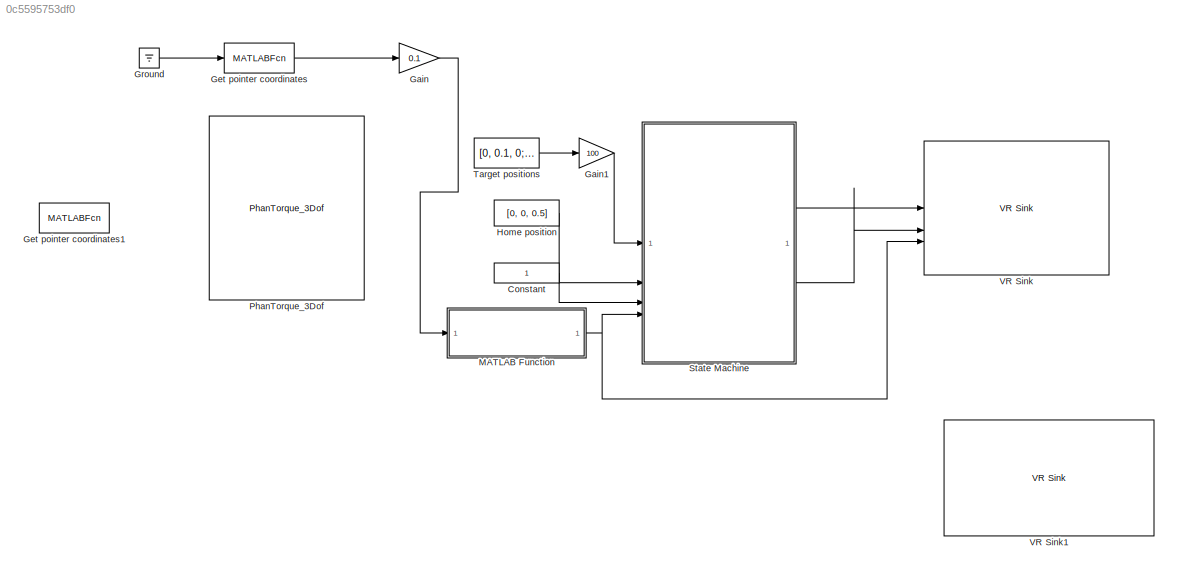
MODEL slx_0c5595753df0
KIND model
CONFIG AbsTol = auto
CONFIG EnableMultiTasking = off
CONFIG FixedStep = 0.001
CONFIG MaxStep = auto
CONFIG MinStep = auto
CONFIG RelTol = 1e-3
CONFIG SampleTimeConstraint = Unconstrained
CONFIG SolverName = ode23t
CONFIG StartTime = 0.0
CONFIG StopTime = inf
BLOCK [Constant] Constant
  VectorParams1D = off
BLOCK [Gain] Gain
  Gain = 0.1
BLOCK [Gain] Gain1
  Gain = 100
BLOCK [MATLABFcn] Get pointer coordinates
  MATLABFcn = get(0, 'PointerLocation') - [860 540]
  OutputDimensions = 2
BLOCK [MATLABFcn] Get pointer coordinates1
  Commented = on
  MATLABFcn = get(0, 'PointerLocation') - [860 540]
  OutputDimensions = 2
BLOCK [Ground] Ground
BLOCK [Constant] Home position
  Value = [0, 0, 0.5]
  VectorParams1D = off
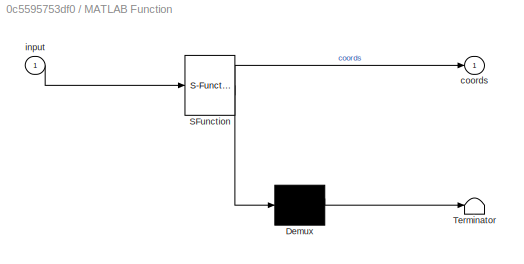
BLOCK [SubSystem] MATLAB Function
  ErrorFcn = Stateflow.Translate.translate
  PermitHierarchicalResolution = ExplicitOnly
  SFBlockType = MATLAB Function
  TreatAsAtomicUnit = on
BLOCK [Demux] MATLAB Function/ Demux 
  Outputs = 1
BLOCK [S-Function] MATLAB Function/ SFunction 
  EnableBusSupport = on
  FunctionName = sf_sfun
  PortCounts = [1 2]
  SFcnIsStateOwnerBlock = off
  SFunctionDeploymentMode = off
  Tag = Stateflow S-Function 2
BLOCK [Terminator] MATLAB Function/ Terminator 
BLOCK [Outport] MATLAB Function/coords
BLOCK [Inport] MATLAB Function/input
BLOCK [Reference] PhanTorque_3Dof  REF=PhanTorque_3Dof_Library_64Bits/PhanTorque_3Dof
  Commented = on
  SourceBlock = PhanTorque_3Dof_Library_64Bits/PhanTorque_3Dof
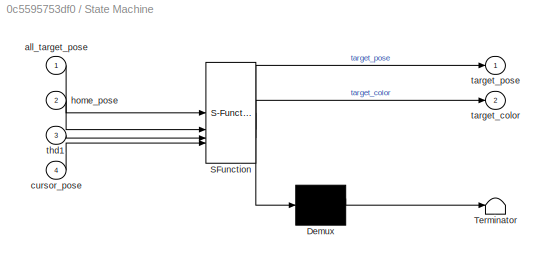
BLOCK [SubSystem] State Machine
  ErrorFcn = Stateflow.Translate.translate
  PermitHierarchicalResolution = ExplicitOnly
  SFBlockType = Chart
  TreatAsAtomicUnit = on
BLOCK [Demux] State Machine/ Demux 
  Outputs = 1
BLOCK [S-Function] State Machine/ SFunction 
  EnableBusSupport = on
  FunctionName = sf_sfun
  PortCounts = [4 3]
  SFcnIsStateOwnerBlock = off
  SFunctionDeploymentMode = off
  Tag = Stateflow S-Function 1
BLOCK [Terminator] State Machine/ Terminator 
BLOCK [Inport] State Machine/all_target_pose
BLOCK [Inport] State Machine/cursor_pose
  Port = 4
BLOCK [Inport] State Machine/home_pose
  Port = 2
BLOCK [Outport] State Machine/target_color
  Port = 2
BLOCK [Outport] State Machine/target_pose
BLOCK [Inport] State Machine/thd1
  Port = 3
BLOCK [Constant] Target positions
  Value = [0, 0.1, 0; 0.1, 0, 0; -0.1, 0, 0; 0.070711, 0.070711, 0; -0.070711, -0.070711, 0; -0.070711, 0.070711, 0; 0.070711, -0.070711, 0; 0, -0.1, 0]
  VectorParams1D = off
BLOCK [Reference] VR Sink  REF=vrlib/VR Sink
  InstantiateOnLoad = on
  SourceBlock = vrlib/VR Sink
  SourceType = Virtual Reality Sink
BLOCK [Reference] VR Sink1  REF=vrlib/VR Sink
  InstantiateOnLoad = on
  SourceBlock = vrlib/VR Sink
  SourceType = Virtual Reality Sink
LINE Constant:1 -> State Machine:3
LINE Gain1:1 -> State Machine:1
LINE Gain:1 -> MATLAB Function:1
LINE Get pointer coordinates:1 -> Gain:1
LINE Ground:1 -> Get pointer coordinates:1
LINE Home position:1 -> State Machine:2
NET MATLAB Function:1 -> State Machine:4, VR Sink:3
LINE State Machine:1 -> VR Sink:1
LINE State Machine:2 -> VR Sink:2
LINE Target positions:1 -> Gain1:1
note: NET lines group one-source signal fan-out (src -> all destinations, sorted); 1:1 wires keep LINE
CHART State Machine states=5 transitions=8
  STATE_LABEL 'Initializing\nentry:\ncounter = 1\ntarget_color = [1 0 0]\ntarget_pose = zeros(1,3)\ntarget_pose = home_pose'
  STATE_LABEL 'reach_target\nentry:\ntarget_color = [0 1 0]\ntarget_pose = all_target_pose(counter, :)\n'
  STATE_LABEL 'reach_home\nentry:\ntarget_color = [1 0 0]\ntarget_pose = home_pose\n'
  STATE_LABEL 'increase_counter\nentry:\ncounter = counter + 1'
  STATE_LABEL 'Finish'
CHART MATLAB Function states=1 transitions=1
  STATE_LABEL 'eML_blk_kernel()'
  STATE_LABEL 'SCRIPT:\nfunction coords = get_pointer_coordinates(input)  \n    coords = [input(1), input(2), 1.5]; \nend\n'
CHART  states=0 transitions=0
CHART  states=0 transitions=0
